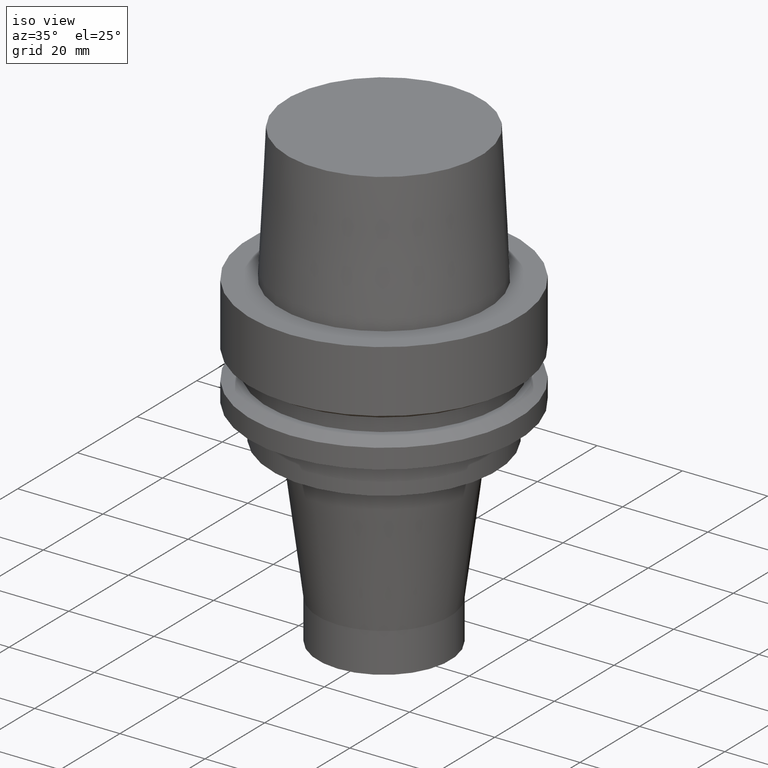
[diagram: clean part render]
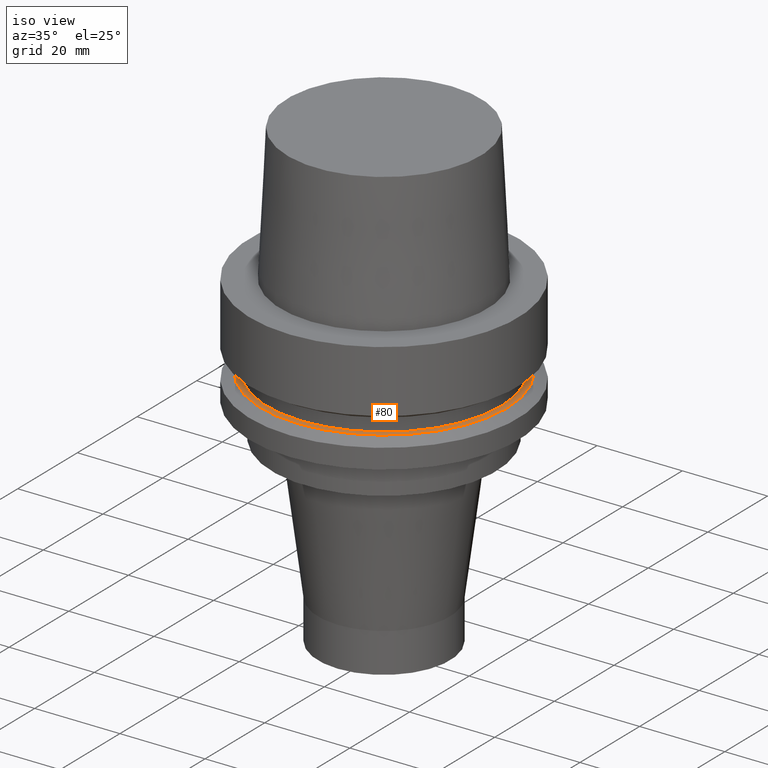
[diagram: same view with one face highlighted and labeled with its STEP entity id]
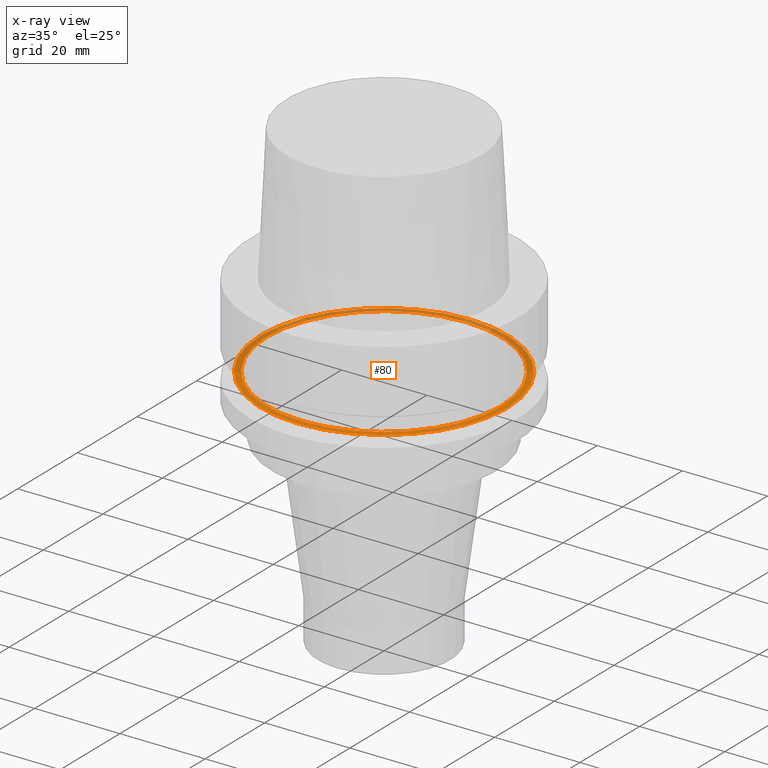
[diagram: x-ray of the same camera — body ghosted, the highlighted face saturated]
A machine part, iso view. The second image highlights one B-rep face of the part: STEP entity #80.
The next image is the same camera in x-ray: the body ghosted, the highlighted face saturated — about 50% of this face is hidden behind the body in this view.
In plain terms, the highlighted planar face has unit normal (-0, -0, 1).
Its self-contained STEP definition (entity closure, byte-faithful):
#80=ADVANCED_FACE('',(#108,#109),#110,.T.);
#108=FACE_OUTER_BOUND('',#157,.T.);
#109=FACE_BOUND('',#158,.T.);
#110=PLANE('',#159);
#157=EDGE_LOOP('',(#216));
#158=EDGE_LOOP('',(#217));
#159=AXIS2_PLACEMENT_3D('',#218,#219,#220);
#216=ORIENTED_EDGE('',*,*,#280,.F.);
#217=ORIENTED_EDGE('',*,*,#279,.T.);
#218=CARTESIAN_POINT('',(1.21699275665268E-015,28.19879763,-19.875));
#219=DIRECTION('',(-6.12323399573677E-017,-1.22464679914735E-016,1.0));
#220=DIRECTION('',(1.23259516440783E-032,-1.0,-1.22464679914735E-016));
#279=EDGE_CURVE('',#300,#300,#301,.T.);
#280=EDGE_CURVE('',#302,#302,#303,.T.);
#300=VERTEX_POINT('',#332);
#301=CIRCLE('',#333,27.5);
#302=VERTEX_POINT('',#334);
#303=CIRCLE('',#335,28.89759526);
#332=CARTESIAN_POINT('',(1.21699275665268E-015,27.5,-19.875));
#333=AXIS2_PLACEMENT_3D('',#369,#370,#371);
#334=CARTESIAN_POINT('',(1.21699275665268E-015,28.89759526,-19.875));
#335=AXIS2_PLACEMENT_3D('',#372,#373,#374);
#369=CARTESIAN_POINT('',(1.21699275665268E-015,2.43398551330536E-015,-19.875));
#370=DIRECTION('',(6.12323399573677E-017,1.22464679914735E-016,-1.0));
#371=DIRECTION('',(-1.23259516440783E-032,1.0,1.22464679914735E-016));
#372=CARTESIAN_POINT('',(1.21699275665268E-015,2.43398551330536E-015,-19.875));
#373=DIRECTION('',(6.12323399573677E-017,1.22464679914735E-016,-1.0));
#374=DIRECTION('',(-1.23259516440783E-032,1.0,1.22464679914735E-016));